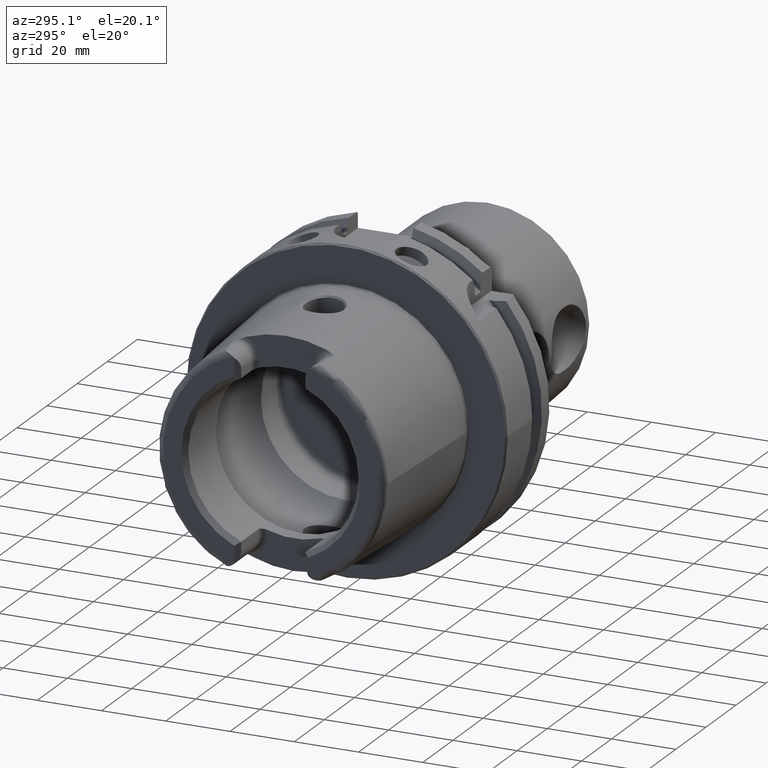
[diagram: clean part render]
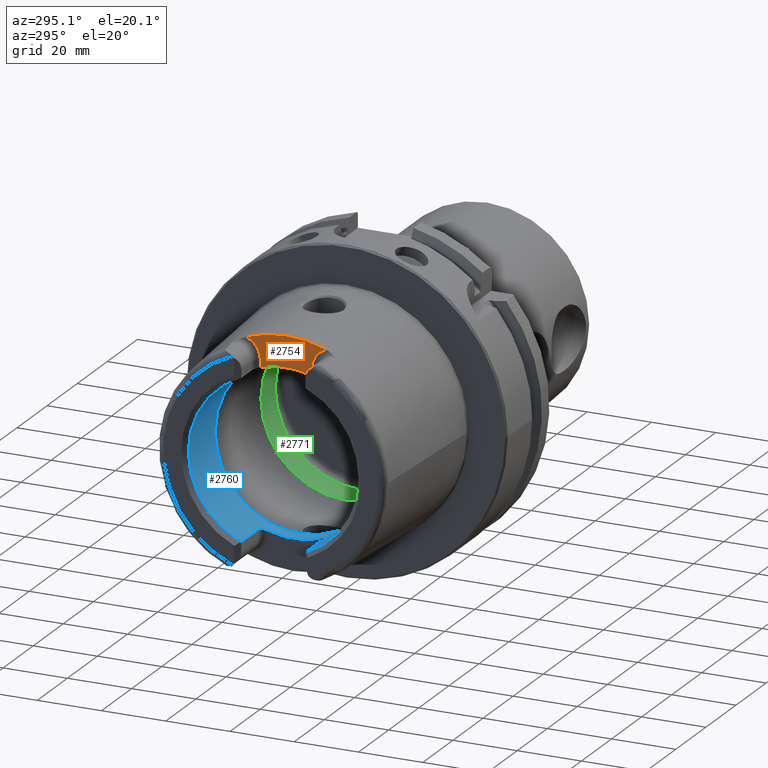
[diagram: same view with three faces highlighted in distinct colors, each labeled with its STEP entity id]
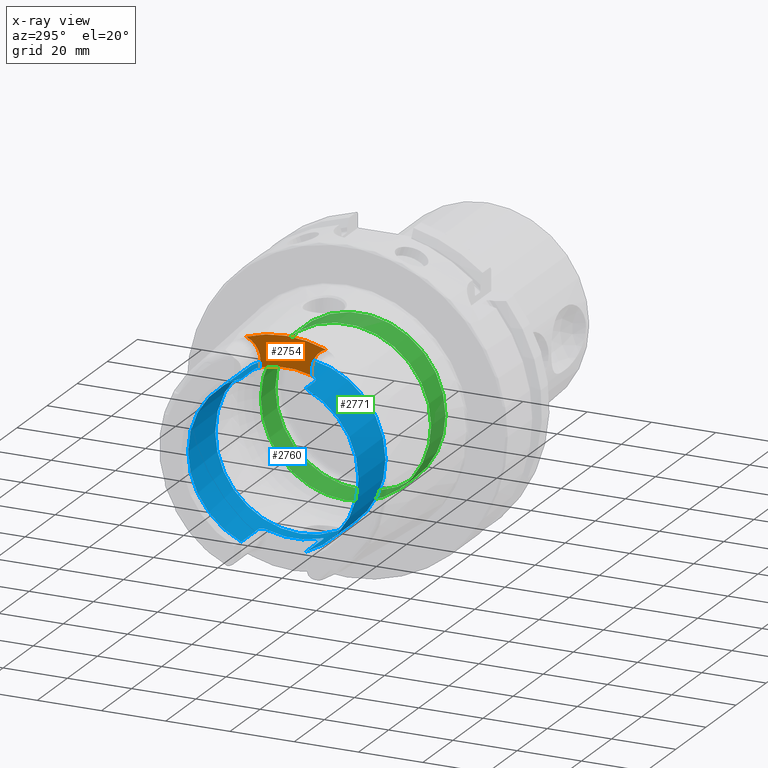
[diagram: x-ray of the same camera — body ghosted, the three highlighted faces saturated]
A machine part, auxiliary view with three faces highlighted in distinct colors.
The next image is the same camera in x-ray (body ghosted, the three faces saturated) — at least one of them is partly hidden behind the body in this view.
Their STEP definitions:

[orange] entity #2754 — the highlighted planar face has unit normal (-1, 0, 0).
#291=LINE('',#6009,#418);
#292=LINE('',#6038,#419);
#418=VECTOR('',#3722,10.);
#419=VECTOR('',#3735,10.);
#618=FACE_OUTER_BOUND('',#781,.T.);
#781=EDGE_LOOP('',(#2427,#2428,#2429,#2430,#2431,#2432));
#900=CIRCLE('',#2949,36.003493987976);
#948=CIRCLE('',#3040,6.88);
#950=CIRCLE('',#3043,6.88);
#962=CIRCLE('',#3068,26.5);
#1167=VERTEX_POINT('',#5173);
#1168=VERTEX_POINT('',#5190);
#1266=VERTEX_POINT('',#6006);
#1267=VERTEX_POINT('',#6008);
#1268=VERTEX_POINT('',#6023);
#1269=VERTEX_POINT('',#6027);
#1513=EDGE_CURVE('',#1167,#1168,#900,.T.);
#1658=EDGE_CURVE('',#1266,#1267,#291,.T.);
#1660=EDGE_CURVE('',#1168,#1266,#948,.T.);
#1662=EDGE_CURVE('',#1268,#1167,#950,.T.);
#1664=EDGE_CURVE('',#1269,#1268,#292,.T.);
#1685=EDGE_CURVE('',#1267,#1269,#962,.T.);
#2427=ORIENTED_EDGE('',*,*,#1660,.F.);
#2428=ORIENTED_EDGE('',*,*,#1513,.F.);
#2429=ORIENTED_EDGE('',*,*,#1662,.F.);
#2430=ORIENTED_EDGE('',*,*,#1664,.F.);
#2431=ORIENTED_EDGE('',*,*,#1685,.F.);
#2432=ORIENTED_EDGE('',*,*,#1658,.F.);
#2634=PLANE('',#3067);
#2754=ADVANCED_FACE('',(#618),#2634,.T.);
#2949=AXIS2_PLACEMENT_3D('',#5191,#3491,#3492);
#3040=AXIS2_PLACEMENT_3D('',#6021,#3725,#3726);
#3043=AXIS2_PLACEMENT_3D('',#6025,#3731,#3732);
#3067=AXIS2_PLACEMENT_3D('',#6096,#3787,#3788);
#3068=AXIS2_PLACEMENT_3D('',#6097,#3789,#3790);
#3491=DIRECTION('center_axis',(1.,0.,0.));
#3492=DIRECTION('ref_axis',(0.,1.,0.));
#3722=DIRECTION('',(0.,0.,-1.));
#3725=DIRECTION('center_axis',(-1.,0.,0.));
#3726=DIRECTION('ref_axis',(0.,0.564947834751706,0.82512662301574));
#3731=DIRECTION('center_axis',(-1.,0.,0.));
#3732=DIRECTION('ref_axis',(0.,-0.564947834751705,0.825126623015741));
#3735=DIRECTION('',(0.,0.,1.));
#3787=DIRECTION('center_axis',(-1.,0.,0.));
#3788=DIRECTION('ref_axis',(0.,0.,1.));
#3789=DIRECTION('center_axis',(-1.,0.,0.));
#3790=DIRECTION('ref_axis',(0.,1.,0.));
#5173=CARTESIAN_POINT('',(-40.,12.4227760464511,33.7923987701664));
#5190=CARTESIAN_POINT('',(-40.,-12.4227760464511,33.7923987701664));
#5191=CARTESIAN_POINT('Origin',(-40.,0.,0.));
#6006=CARTESIAN_POINT('',(-40.,-8.01,27.37));
#6008=CARTESIAN_POINT('',(-40.,-8.01,25.2604414054862));
#6009=CARTESIAN_POINT('',(-40.,-8.01,23.5));
#6021=CARTESIAN_POINT('Origin',(-40.,-14.89,27.37));
#6023=CARTESIAN_POINT('',(-40.,8.01,27.37));
#6025=CARTESIAN_POINT('Origin',(-40.,14.89,27.37));
#6027=CARTESIAN_POINT('',(-40.,8.01,25.2604414054862));
#6038=CARTESIAN_POINT('',(-40.,8.01,28.185));
#6096=CARTESIAN_POINT('Origin',(-40.,0.,29.));
#6097=CARTESIAN_POINT('Origin',(-40.,0.,0.));

[blue] entity #2760 — the highlighted cylindrical surface (bore or boss wall) has radius 26.5 mm, axis along (-1, 0, 0).
#177=B_SPLINE_CURVE_WITH_KNOTS('',3,(#6010,#6011,#6012,#6013,#6014,#6015,
#6016,#6017,#6018,#6019),.UNSPECIFIED.,.F.,.F.,(4,2,2,2,4),(0.307245873696209,
0.387318131676521,0.467390389656833,0.542677307505841,0.617964225354849),
 .UNSPECIFIED.);
#178=B_SPLINE_CURVE_WITH_KNOTS('',3,(#6028,#6029,#6030,#6031,#6032,#6033,
#6034,#6035,#6036,#6037),.UNSPECIFIED.,.F.,.F.,(4,2,2,2,4),(0.61796422535485,
0.694491364966707,0.771018504578565,0.849854597041439,0.928690689504313),
 .UNSPECIFIED.);
#179=B_SPLINE_CURVE_WITH_KNOTS('',3,(#6050,#6051,#6052,#6053,#6054,#6055,
#6056,#6057,#6058,#6059),.UNSPECIFIED.,.F.,.F.,(4,2,2,2,4),(0.617964225354849,
0.693251143203857,0.768538061052865,0.848610319033177,0.928682577013489),
 .UNSPECIFIED.);
#180=B_SPLINE_CURVE_WITH_KNOTS('',3,(#6079,#6080,#6081,#6082,#6083,#6084,
#6085,#6086,#6087,#6088),.UNSPECIFIED.,.F.,.F.,(4,2,2,2,4),(0.307245873696209,
0.387318131676521,0.467390389656833,0.542677307505841,0.617964225354849),
 .UNSPECIFIED.);
#224=LINE('',#4742,#351);
#232=LINE('',#4821,#359);
#236=LINE('',#4887,#363);
#297=LINE('',#6075,#424);
#301=LINE('',#6125,#428);
#351=VECTOR('',#3413,10.);
#359=VECTOR('',#3455,10.);
#363=VECTOR('',#3475,10.);
#424=VECTOR('',#3768,10.);
#428=VECTOR('',#3814,26.5);
#475=CYLINDRICAL_SURFACE('',#3077,26.5);
#624=FACE_OUTER_BOUND('',#787,.T.);
#787=EDGE_LOOP('',(#2457,#2458,#2459,#2460,#2461,#2462,#2463,#2464,#2465,
#2466,#2467,#2468,#2469,#2470,#2471,#2472,#2473,#2474));
#887=CIRCLE('',#2926,26.5);
#888=CIRCLE('',#2927,26.5);
#957=CIRCLE('',#3056,26.5);
#962=CIRCLE('',#3068,26.5);
#963=CIRCLE('',#3071,26.5);
#966=CIRCLE('',#3078,26.5);
#967=CIRCLE('',#3079,26.5);
#968=CIRCLE('',#3080,26.5);
#1120=VERTEX_POINT('',#4730);
#1123=VERTEX_POINT('',#4740);
#1132=VERTEX_POINT('',#4789);
#1134=VERTEX_POINT('',#4797);
#1135=VERTEX_POINT('',#4801);
#1141=VERTEX_POINT('',#4819);
#1147=VERTEX_POINT('',#4852);
#1152=VERTEX_POINT('',#4886);
#1267=VERTEX_POINT('',#6008);
#1269=VERTEX_POINT('',#6027);
#1273=VERTEX_POINT('',#6048);
#1274=VERTEX_POINT('',#6049);
#1276=VERTEX_POINT('',#6069);
#1278=VERTEX_POINT('',#6120);
#1279=VERTEX_POINT('',#6121);
#1280=VERTEX_POINT('',#6123);
#1457=EDGE_CURVE('',#1120,#1123,#224,.T.);
#1470=EDGE_CURVE('',#1134,#1135,#887,.T.);
#1471=EDGE_CURVE('',#1135,#1132,#888,.T.);
#1480=EDGE_CURVE('',#1134,#1141,#232,.T.);
#1493=EDGE_CURVE('',#1152,#1147,#236,.T.);
#1659=EDGE_CURVE('',#1267,#1141,#177,.T.);
#1663=EDGE_CURVE('',#1152,#1269,#178,.T.);
#1669=EDGE_CURVE('',#1273,#1274,#179,.T.);
#1675=EDGE_CURVE('',#1276,#1274,#957,.T.);
#1678=EDGE_CURVE('',#1273,#1132,#297,.T.);
#1681=EDGE_CURVE('',#1276,#1123,#180,.T.);
#1685=EDGE_CURVE('',#1267,#1269,#962,.T.);
#1687=EDGE_CURVE('',#1120,#1147,#963,.T.);
#1691=EDGE_CURVE('',#1278,#1279,#966,.T.);
#1692=EDGE_CURVE('',#1280,#1278,#967,.T.);
#1693=EDGE_CURVE('',#1280,#1135,#301,.T.);
#1694=EDGE_CURVE('',#1279,#1280,#968,.T.);
#2457=ORIENTED_EDGE('',*,*,#1691,.F.);
#2458=ORIENTED_EDGE('',*,*,#1692,.F.);
#2459=ORIENTED_EDGE('',*,*,#1693,.T.);
#2460=ORIENTED_EDGE('',*,*,#1470,.F.);
#2461=ORIENTED_EDGE('',*,*,#1480,.T.);
#2462=ORIENTED_EDGE('',*,*,#1659,.F.);
#2463=ORIENTED_EDGE('',*,*,#1685,.T.);
#2464=ORIENTED_EDGE('',*,*,#1663,.F.);
#2465=ORIENTED_EDGE('',*,*,#1493,.T.);
#2466=ORIENTED_EDGE('',*,*,#1687,.F.);
#2467=ORIENTED_EDGE('',*,*,#1457,.T.);
#2468=ORIENTED_EDGE('',*,*,#1681,.F.);
#2469=ORIENTED_EDGE('',*,*,#1675,.T.);
#2470=ORIENTED_EDGE('',*,*,#1669,.F.);
#2471=ORIENTED_EDGE('',*,*,#1678,.T.);
#2472=ORIENTED_EDGE('',*,*,#1471,.F.);
#2473=ORIENTED_EDGE('',*,*,#1693,.F.);
#2474=ORIENTED_EDGE('',*,*,#1694,.F.);
#2760=ADVANCED_FACE('',(#624),#475,.F.);
#2926=AXIS2_PLACEMENT_3D('',#4802,#3433,#3434);
#2927=AXIS2_PLACEMENT_3D('',#4803,#3435,#3436);
#3056=AXIS2_PLACEMENT_3D('',#6070,#3761,#3762);
#3068=AXIS2_PLACEMENT_3D('',#6097,#3789,#3790);
#3071=AXIS2_PLACEMENT_3D('',#6112,#3795,#3796);
#3077=AXIS2_PLACEMENT_3D('',#6119,#3808,#3809);
#3078=AXIS2_PLACEMENT_3D('',#6122,#3810,#3811);
#3079=AXIS2_PLACEMENT_3D('',#6124,#3812,#3813);
#3080=AXIS2_PLACEMENT_3D('',#6126,#3815,#3816);
#3413=DIRECTION('',(1.,0.,0.));
#3433=DIRECTION('center_axis',(1.,0.,0.));
#3434=DIRECTION('ref_axis',(0.,-1.,0.));
#3435=DIRECTION('center_axis',(1.,0.,0.));
#3436=DIRECTION('ref_axis',(0.,-1.,0.));
#3455=DIRECTION('',(1.,0.,0.));
#3475=DIRECTION('',(-1.,0.,0.));
#3761=DIRECTION('center_axis',(-1.,0.,0.));
#3762=DIRECTION('ref_axis',(0.,1.,0.));
#3768=DIRECTION('',(-1.,0.,0.));
#3789=DIRECTION('center_axis',(-1.,0.,0.));
#3790=DIRECTION('ref_axis',(0.,1.,0.));
#3795=DIRECTION('center_axis',(1.,0.,0.));
#3796=DIRECTION('ref_axis',(0.,-1.,0.));
#3808=DIRECTION('center_axis',(-1.,0.,0.));
#3809=DIRECTION('ref_axis',(0.,1.,0.));
#3810=DIRECTION('center_axis',(-1.,0.,0.));
#3811=DIRECTION('ref_axis',(0.,0.,1.));
#3812=DIRECTION('center_axis',(-1.,0.,0.));
#3813=DIRECTION('ref_axis',(0.,0.,1.));
#3814=DIRECTION('',(-1.,0.,0.));
#3815=DIRECTION('center_axis',(-1.,0.,0.));
#3816=DIRECTION('ref_axis',(0.,0.,1.));
#4730=CARTESIAN_POINT('',(-48.5,10.01,-24.5367051577835));
#4740=CARTESIAN_POINT('',(-37.,10.01,-24.5367051577835));
#4742=CARTESIAN_POINT('',(-40.2903629710818,10.01,-24.5367051577835));
#4789=CARTESIAN_POINT('',(-48.5,-10.01,-24.5367051577835));
#4797=CARTESIAN_POINT('',(-48.5,-10.01,24.5367051577835));
#4801=CARTESIAN_POINT('',(-48.5,-26.5,3.24531401774049E-15));
#4802=CARTESIAN_POINT('Origin',(-48.5,0.,0.));
#4803=CARTESIAN_POINT('Origin',(-48.5,0.,0.));
#4819=CARTESIAN_POINT('',(-42.,-10.01,24.5367051577835));
#4821=CARTESIAN_POINT('',(-40.2903629710818,-10.01,24.5367051577835));
#4852=CARTESIAN_POINT('',(-48.5,10.01,24.5367051577835));
#4886=CARTESIAN_POINT('',(-42.,10.01,24.5367051577835));
#4887=CARTESIAN_POINT('',(-40.2903629710818,10.01,24.5367051577835));
#6008=CARTESIAN_POINT('',(-40.,-8.01,25.2604414054862));
#6010=CARTESIAN_POINT('Ctrl Pts',(-40.,-8.01,25.2604414054862));
#6011=CARTESIAN_POINT('Ctrl Pts',(-40.,-8.26442271458071,25.1797648285777));
#6012=CARTESIAN_POINT('Ctrl Pts',(-40.0513332778729,-8.53503831367686,25.0892968127514));
#6013=CARTESIAN_POINT('Ctrl Pts',(-40.2604388709541,-9.03317850506395,24.9142806373643));
#6014=CARTESIAN_POINT('Ctrl Pts',(-40.4182028025644,-9.2607746884821,24.8299262887475));
#6015=CARTESIAN_POINT('Ctrl Pts',(-40.7762398849713,-9.61038047170956,24.6966285655713));
#6016=CARTESIAN_POINT('Ctrl Pts',(-40.996584045901,-9.75993653512726,24.6374761492843));
#6017=CARTESIAN_POINT('Ctrl Pts',(-41.4829332858843,-9.95981108540838,24.557356442995));
#6018=CARTESIAN_POINT('Ctrl Pts',(-41.74904360717,-10.01,24.5367051577835));
#6019=CARTESIAN_POINT('Ctrl Pts',(-42.,-10.01,24.5367051577835));
#6027=CARTESIAN_POINT('',(-40.,8.01,25.2604414054862));
#6028=CARTESIAN_POINT('Ctrl Pts',(-42.,10.01,24.5367051577835));
#6029=CARTESIAN_POINT('Ctrl Pts',(-41.7449095346271,10.01,24.5367051577835));
#6030=CARTESIAN_POINT('Ctrl Pts',(-41.4747619014646,9.95816285425487,24.5580391842641));
#6031=CARTESIAN_POINT('Ctrl Pts',(-40.9823460284033,9.75229566196282,24.640515927451));
#6032=CARTESIAN_POINT('Ctrl Pts',(-40.7599680829949,9.59839520774108,24.7013267120605));
#6033=CARTESIAN_POINT('Ctrl Pts',(-40.4063494382929,9.24477656303909,24.8358806096526));
#6034=CARTESIAN_POINT('Ctrl Pts',(-40.2529543645221,9.01930384320105,24.9192727261742));
#6035=CARTESIAN_POINT('Ctrl Pts',(-40.049776768453,8.52719637786957,25.0919293188873));
#6036=CARTESIAN_POINT('Ctrl Pts',(-40.,8.26049490494288,25.1810103236462));
#6037=CARTESIAN_POINT('Ctrl Pts',(-40.,8.01,25.2604414054862));
#6048=CARTESIAN_POINT('',(-37.,-10.01,-24.5367051577835));
#6049=CARTESIAN_POINT('',(-35.,-8.01,-25.2604414054862));
#6050=CARTESIAN_POINT('Ctrl Pts',(-37.,-10.01,-24.5367051577835));
#6051=CARTESIAN_POINT('Ctrl Pts',(-36.74904360717,-10.01,-24.5367051577835));
#6052=CARTESIAN_POINT('Ctrl Pts',(-36.4829332858843,-9.95981108540838,-24.557356442995));
#6053=CARTESIAN_POINT('Ctrl Pts',(-35.9965840459011,-9.75993653512726,-24.6374761492843));
#6054=CARTESIAN_POINT('Ctrl Pts',(-35.7762398849713,-9.61038047170956,-24.6966285655713));
#6055=CARTESIAN_POINT('Ctrl Pts',(-35.4182028025644,-9.2607746884821,-24.8299262887475));
#6056=CARTESIAN_POINT('Ctrl Pts',(-35.2604388709541,-9.03317850506395,-24.9142806373643));
#6057=CARTESIAN_POINT('Ctrl Pts',(-35.0513332778729,-8.53503831367686,-25.0892968127514));
#6058=CARTESIAN_POINT('Ctrl Pts',(-35.,-8.26442271458071,-25.1797648285777));
#6059=CARTESIAN_POINT('Ctrl Pts',(-35.,-8.01,-25.2604414054862));
#6069=CARTESIAN_POINT('',(-35.,8.01,-25.2604414054862));
#6070=CARTESIAN_POINT('Origin',(-35.,0.,0.));
#6075=CARTESIAN_POINT('',(-40.2903629710818,-10.01,-24.5367051577835));
#6079=CARTESIAN_POINT('Ctrl Pts',(-35.,8.01,-25.2604414054862));
#6080=CARTESIAN_POINT('Ctrl Pts',(-35.,8.26442271458071,-25.1797648285777));
#6081=CARTESIAN_POINT('Ctrl Pts',(-35.0513332778729,8.53503831367686,-25.0892968127514));
#6082=CARTESIAN_POINT('Ctrl Pts',(-35.2604388709541,9.03317850506395,-24.9142806373643));
#6083=CARTESIAN_POINT('Ctrl Pts',(-35.4182028025644,9.2607746884821,-24.8299262887475));
#6084=CARTESIAN_POINT('Ctrl Pts',(-35.7762398849713,9.61038047170956,-24.6966285655713));
#6085=CARTESIAN_POINT('Ctrl Pts',(-35.9965840459011,9.75993653512726,-24.6374761492843));
#6086=CARTESIAN_POINT('Ctrl Pts',(-36.4829332858843,9.95981108540838,-24.557356442995));
#6087=CARTESIAN_POINT('Ctrl Pts',(-36.74904360717,10.01,-24.5367051577835));
#6088=CARTESIAN_POINT('Ctrl Pts',(-37.,10.01,-24.5367051577835));
#6097=CARTESIAN_POINT('Origin',(-40.,0.,0.));
#6112=CARTESIAN_POINT('Origin',(-48.5,0.,0.));
#6119=CARTESIAN_POINT('Origin',(-40.2903629710818,0.,0.));
#6120=CARTESIAN_POINT('',(-30.5807259421637,26.5,0.));
#6121=CARTESIAN_POINT('',(-30.5807259421637,-3.24531401774049E-15,-26.5));
#6122=CARTESIAN_POINT('Origin',(-30.5807259421637,0.,0.));
#6123=CARTESIAN_POINT('',(-30.5807259421637,-26.5,3.24531401774049E-15));
#6124=CARTESIAN_POINT('Origin',(-30.5807259421637,0.,0.));
#6125=CARTESIAN_POINT('',(-40.2903629710818,-26.5,3.24531401774049E-15));
#6126=CARTESIAN_POINT('Origin',(-30.5807259421637,0.,0.));

[green] entity #2771 — the highlighted cylindrical surface (bore or boss wall) has radius 26.5 mm, axis along (-1, 0, 0).
#305=LINE('',#6180,#432);
#432=VECTOR('',#3884,26.5);
#478=CYLINDRICAL_SURFACE('',#3112,26.5);
#635=FACE_OUTER_BOUND('',#801,.T.);
#801=EDGE_LOOP('',(#2534,#2535,#2536,#2537,#2538,#2539,#2540,#2541));
#908=CIRCLE('',#2961,26.5);
#909=CIRCLE('',#2962,26.5);
#910=CIRCLE('',#2963,26.5);
#987=CIRCLE('',#3109,26.5);
#988=CIRCLE('',#3110,26.5);
#989=CIRCLE('',#3111,26.5);
#1184=VERTEX_POINT('',#5500);
#1185=VERTEX_POINT('',#5501);
#1186=VERTEX_POINT('',#5503);
#1296=VERTEX_POINT('',#6172);
#1297=VERTEX_POINT('',#6174);
#1298=VERTEX_POINT('',#6176);
#1537=EDGE_CURVE('',#1184,#1185,#908,.T.);
#1538=EDGE_CURVE('',#1186,#1184,#909,.T.);
#1539=EDGE_CURVE('',#1185,#1186,#910,.T.);
#1716=EDGE_CURVE('',#1296,#1297,#987,.T.);
#1717=EDGE_CURVE('',#1297,#1298,#988,.T.);
#1718=EDGE_CURVE('',#1298,#1296,#989,.T.);
#1719=EDGE_CURVE('',#1297,#1186,#305,.T.);
#2534=ORIENTED_EDGE('',*,*,#1718,.F.);
#2535=ORIENTED_EDGE('',*,*,#1717,.F.);
#2536=ORIENTED_EDGE('',*,*,#1719,.T.);
#2537=ORIENTED_EDGE('',*,*,#1538,.T.);
#2538=ORIENTED_EDGE('',*,*,#1537,.T.);
#2539=ORIENTED_EDGE('',*,*,#1539,.T.);
#2540=ORIENTED_EDGE('',*,*,#1719,.F.);
#2541=ORIENTED_EDGE('',*,*,#1716,.F.);
#2771=ADVANCED_FACE('',(#635),#478,.F.);
#2961=AXIS2_PLACEMENT_3D('',#5502,#3521,#3522);
#2962=AXIS2_PLACEMENT_3D('',#5504,#3523,#3524);
#2963=AXIS2_PLACEMENT_3D('',#5505,#3525,#3526);
#3109=AXIS2_PLACEMENT_3D('',#6175,#3876,#3877);
#3110=AXIS2_PLACEMENT_3D('',#6177,#3878,#3879);
#3111=AXIS2_PLACEMENT_3D('',#6178,#3880,#3881);
#3112=AXIS2_PLACEMENT_3D('',#6179,#3882,#3883);
#3521=DIRECTION('center_axis',(-1.,0.,0.));
#3522=DIRECTION('ref_axis',(0.,0.,1.));
#3523=DIRECTION('center_axis',(-1.,0.,0.));
#3524=DIRECTION('ref_axis',(0.,0.,1.));
#3525=DIRECTION('center_axis',(-1.,0.,0.));
#3526=DIRECTION('ref_axis',(0.,0.,1.));
#3876=DIRECTION('center_axis',(-1.,0.,0.));
#3877=DIRECTION('ref_axis',(0.,0.,1.));
#3878=DIRECTION('center_axis',(-1.,0.,0.));
#3879=DIRECTION('ref_axis',(0.,0.,1.));
#3880=DIRECTION('center_axis',(-1.,0.,0.));
#3881=DIRECTION('ref_axis',(0.,0.,1.));
#3882=DIRECTION('center_axis',(-1.,0.,0.));
#3883=DIRECTION('ref_axis',(0.,1.,0.));
#3884=DIRECTION('',(-1.,0.,0.));
#5500=CARTESIAN_POINT('',(-0.253205655191035,26.5,0.));
#5501=CARTESIAN_POINT('',(-0.253205655191034,-3.24531401774049E-15,-26.5));
#5502=CARTESIAN_POINT('Origin',(-0.253205655191034,0.,0.));
#5503=CARTESIAN_POINT('',(-0.253205655191034,-26.5,3.24531401774049E-15));
#5504=CARTESIAN_POINT('Origin',(-0.253205655191034,0.,0.));
#5505=CARTESIAN_POINT('Origin',(-0.253205655191034,0.,0.));
#6172=CARTESIAN_POINT('',(9.3,-3.24531401774049E-15,-26.5));
#6174=CARTESIAN_POINT('',(9.3,-26.5,3.24531401774049E-15));
#6175=CARTESIAN_POINT('Origin',(9.3,0.,0.));
#6176=CARTESIAN_POINT('',(9.3,26.5,0.));
#6177=CARTESIAN_POINT('Origin',(9.3,0.,0.));
#6178=CARTESIAN_POINT('Origin',(9.3,0.,0.));
#6179=CARTESIAN_POINT('Origin',(4.52339717240448,0.,0.));
#6180=CARTESIAN_POINT('',(4.52339717240448,-26.5,3.24531401774049E-15));